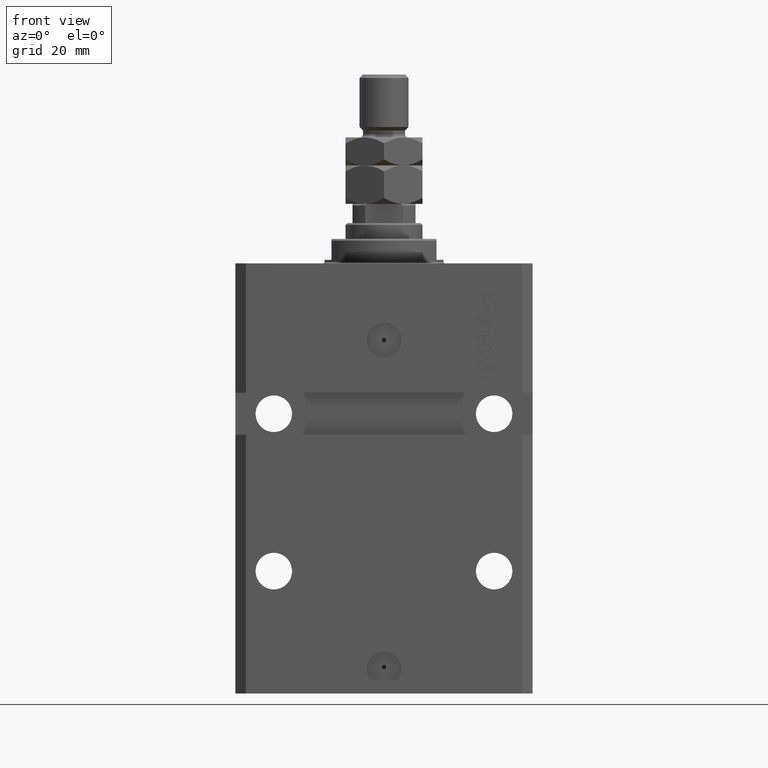
[diagram: clean part render]
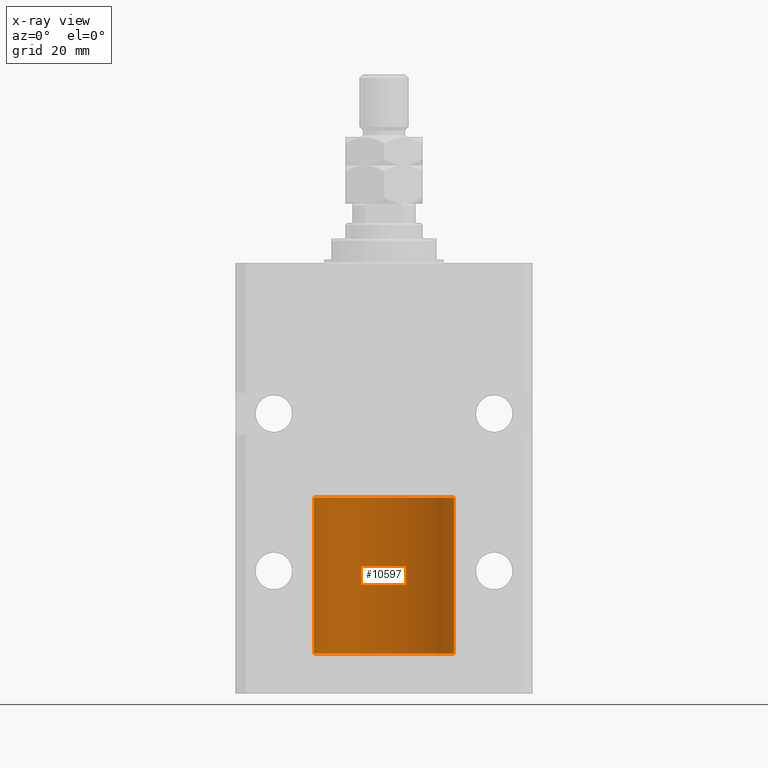
[diagram: x-ray — body ghosted, one internal face saturated and labeled with its STEP entity id]
A machine part, front view, then the same camera in x-ray: the body is ghosted and one INTERNAL B-rep face — a face not visible from any outside direction — is saturated and labeled: STEP entity #10597.
In plain terms, the highlighted cylindrical surface (partial cylindrical patch) has radius 20 mm, axis along (-0, -0, -1).
Its self-contained STEP definition (entity closure, byte-faithful):
#34 = CYLINDRICAL_SURFACE ( 'NONE', #3954, 20.00000000000000000 ) ;
#901 = EDGE_CURVE ( 'NONE', #33957, #6937, #13328, .T. ) ;
#1335 = DIRECTION ( 'NONE',  ( -0.000000000000000000, -0.000000000000000000, -1.000000000000000000 ) ) ;
#3054 = VECTOR ( 'NONE', #1335, 1000.000000000000000 ) ;
#3954 = AXIS2_PLACEMENT_3D ( 'NONE', #15547, #37627, #49319 ) ;
#4900 = CARTESIAN_POINT ( 'NONE',  ( 20.00000000000000000, 2.449293598294706513E-15, 44.60000000000000142 ) ) ;
#6393 = ORIENTED_EDGE ( 'NONE', *, *, #901, .F. ) ;
#6937 = VERTEX_POINT ( 'NONE', #49925 ) ;
#7793 = ORIENTED_EDGE ( 'NONE', *, *, #26864, .T. ) ;
#8616 = VECTOR ( 'NONE', #28809, 1000.000000000000000 ) ;
#10597 = ADVANCED_FACE ( 'NONE', ( #19365 ), #34, .T. ) ;
#11632 = DIRECTION ( 'NONE',  ( 1.000000000000000000, 0.000000000000000000, 0.000000000000000000 ) ) ;
#13328 = LINE ( 'NONE', #47851, #8616 ) ;
#15220 = AXIS2_PLACEMENT_3D ( 'NONE', #43047, #38978, #47617 ) ;
#15459 = CARTESIAN_POINT ( 'NONE',  ( 20.00000000000000000, 2.449293598294706513E-15, 0.000000000000000000 ) ) ;
#15547 = CARTESIAN_POINT ( 'NONE',  ( 0.000000000000000000, 0.000000000000000000, 44.60000000000000142 ) ) ;
#17571 = VERTEX_POINT ( 'NONE', #25232 ) ;
#19365 = FACE_OUTER_BOUND ( 'NONE', #27847, .T. ) ;
#20653 = LINE ( 'NONE', #4900, #3054 ) ;
#22813 = CARTESIAN_POINT ( 'NONE',  ( -20.00000000000000000, 0.000000000000000000, 44.60000000000000142 ) ) ;
#25107 = AXIS2_PLACEMENT_3D ( 'NONE', #42583, #45892, #11632 ) ;
#25186 = ORIENTED_EDGE ( 'NONE', *, *, #29627, .T. ) ;
#25232 = CARTESIAN_POINT ( 'NONE',  ( 20.00000000000000000, 2.449293598294706513E-15, 44.60000000000000142 ) ) ;
#26600 = CIRCLE ( 'NONE', #15220, 20.00000000000000000 ) ;
#26864 = EDGE_CURVE ( 'NONE', #30254, #6937, #26600, .T. ) ;
#27847 = EDGE_LOOP ( 'NONE', ( #41797, #25186, #7793, #6393 ) ) ;
#28809 = DIRECTION ( 'NONE',  ( -0.000000000000000000, -0.000000000000000000, -1.000000000000000000 ) ) ;
#29627 = EDGE_CURVE ( 'NONE', #17571, #30254, #20653, .T. ) ;
#30254 = VERTEX_POINT ( 'NONE', #15459 ) ;
#33921 = EDGE_CURVE ( 'NONE', #17571, #33957, #46981, .T. ) ;
#33957 = VERTEX_POINT ( 'NONE', #22813 ) ;
#37627 = DIRECTION ( 'NONE',  ( -0.000000000000000000, -0.000000000000000000, -1.000000000000000000 ) ) ;
#38978 = DIRECTION ( 'NONE',  ( 0.000000000000000000, 0.000000000000000000, 1.000000000000000000 ) ) ;
#41797 = ORIENTED_EDGE ( 'NONE', *, *, #33921, .F. ) ;
#42583 = CARTESIAN_POINT ( 'NONE',  ( 0.000000000000000000, 0.000000000000000000, 44.60000000000000142 ) ) ;
#43047 = CARTESIAN_POINT ( 'NONE',  ( 0.000000000000000000, 0.000000000000000000, 0.000000000000000000 ) ) ;
#45892 = DIRECTION ( 'NONE',  ( 0.000000000000000000, 0.000000000000000000, 1.000000000000000000 ) ) ;
#46981 = CIRCLE ( 'NONE', #25107, 20.00000000000000000 ) ;
#47617 = DIRECTION ( 'NONE',  ( 1.000000000000000000, 0.000000000000000000, 0.000000000000000000 ) ) ;
#47851 = CARTESIAN_POINT ( 'NONE',  ( -20.00000000000000000, 0.000000000000000000, 44.60000000000000142 ) ) ;
#49319 = DIRECTION ( 'NONE',  ( -1.000000000000000000, 0.000000000000000000, 0.000000000000000000 ) ) ;
#49925 = CARTESIAN_POINT ( 'NONE',  ( -20.00000000000000000, 0.000000000000000000, 0.000000000000000000 ) ) ;